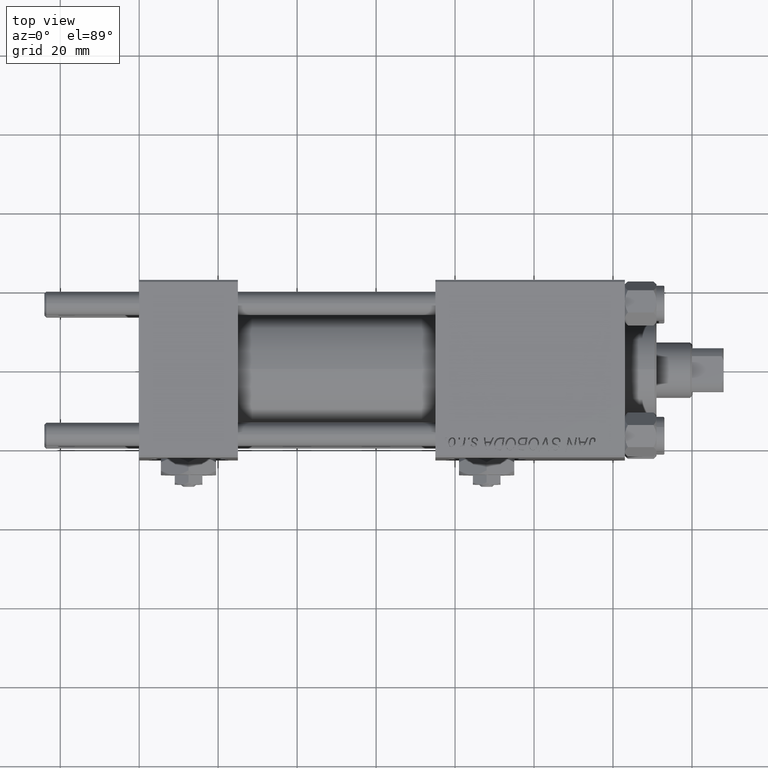
[diagram: clean part render]
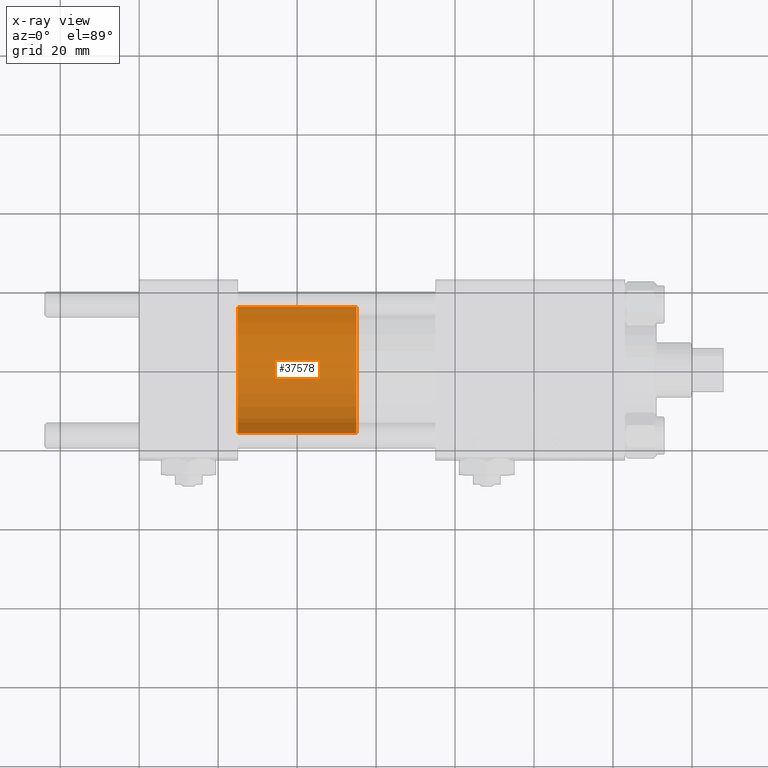
[diagram: x-ray — body ghosted, one internal face saturated and labeled with its STEP entity id]
A machine part, top view, then the same camera in x-ray: the body is ghosted and one INTERNAL B-rep face — a face not visible from any outside direction — is saturated and labeled: STEP entity #37578.
In plain terms, the highlighted cylindrical surface (partial cylindrical patch) has radius 16 mm, axis along (-1, 0, 0).
Its self-contained STEP definition (entity closure, byte-faithful):
#3002 = CARTESIAN_POINT ( 'NONE',  ( 16.00000000000000000, 1.959434878635765131E-15, 30.00000000000000000 ) ) ;
#3242 = DIRECTION ( 'NONE',  ( -0.000000000000000000, -0.000000000000000000, -1.000000000000000000 ) ) ;
#5904 = VECTOR ( 'NONE', #30885, 1000.000000000000000 ) ;
#7209 = CYLINDRICAL_SURFACE ( 'NONE', #39161, 16.00000000000000000 ) ;
#8170 = CARTESIAN_POINT ( 'NONE',  ( 16.00000000000000000, 1.959434878635765131E-15, 0.000000000000000000 ) ) ;
#11947 = CARTESIAN_POINT ( 'NONE',  ( 0.000000000000000000, 0.000000000000000000, 30.00000000000000000 ) ) ;
#13868 = EDGE_CURVE ( 'NONE', #31580, #51499, #36356, .T. ) ;
#14795 = CIRCLE ( 'NONE', #29887, 16.00000000000000000 ) ;
#16001 = DIRECTION ( 'NONE',  ( 1.000000000000000000, 0.000000000000000000, 0.000000000000000000 ) ) ;
#20129 = VECTOR ( 'NONE', #3242, 1000.000000000000000 ) ;
#20259 = ORIENTED_EDGE ( 'NONE', *, *, #31993, .T. ) ;
#20289 = ORIENTED_EDGE ( 'NONE', *, *, #13868, .F. ) ;
#28471 = CARTESIAN_POINT ( 'NONE',  ( -16.00000000000000000, 0.000000000000000000, 30.00000000000000000 ) ) ;
#29843 = CARTESIAN_POINT ( 'NONE',  ( 0.000000000000000000, 0.000000000000000000, 0.000000000000000000 ) ) ;
#29887 = AXIS2_PLACEMENT_3D ( 'NONE', #29843, #34046, #42692 ) ;
#30885 = DIRECTION ( 'NONE',  ( -0.000000000000000000, -0.000000000000000000, -1.000000000000000000 ) ) ;
#31580 = VERTEX_POINT ( 'NONE', #48648 ) ;
#31686 = AXIS2_PLACEMENT_3D ( 'NONE', #43591, #44093, #16001 ) ;
#31933 = FACE_OUTER_BOUND ( 'NONE', #39565, .T. ) ;
#31993 = EDGE_CURVE ( 'NONE', #43355, #51499, #14795, .T. ) ;
#33349 = CARTESIAN_POINT ( 'NONE',  ( 16.00000000000000000, 1.959434878635765131E-15, 30.00000000000000000 ) ) ;
#33736 = ORIENTED_EDGE ( 'NONE', *, *, #36027, .F. ) ;
#34046 = DIRECTION ( 'NONE',  ( 0.000000000000000000, 0.000000000000000000, 1.000000000000000000 ) ) ;
#35370 = DIRECTION ( 'NONE',  ( -0.000000000000000000, -0.000000000000000000, -1.000000000000000000 ) ) ;
#36027 = EDGE_CURVE ( 'NONE', #44016, #31580, #44264, .T. ) ;
#36281 = CARTESIAN_POINT ( 'NONE',  ( -16.00000000000000000, 0.000000000000000000, 0.000000000000000000 ) ) ;
#36356 = LINE ( 'NONE', #28471, #20129 ) ;
#37578 = ADVANCED_FACE ( 'NONE', ( #31933 ), #7209, .T. ) ;
#39003 = LINE ( 'NONE', #3002, #5904 ) ;
#39161 = AXIS2_PLACEMENT_3D ( 'NONE', #11947, #35370, #44249 ) ;
#39565 = EDGE_LOOP ( 'NONE', ( #33736, #43550, #20259, #20289 ) ) ;
#42692 = DIRECTION ( 'NONE',  ( 1.000000000000000000, 0.000000000000000000, 0.000000000000000000 ) ) ;
#43355 = VERTEX_POINT ( 'NONE', #8170 ) ;
#43550 = ORIENTED_EDGE ( 'NONE', *, *, #46483, .T. ) ;
#43591 = CARTESIAN_POINT ( 'NONE',  ( 0.000000000000000000, 0.000000000000000000, 30.00000000000000000 ) ) ;
#44016 = VERTEX_POINT ( 'NONE', #33349 ) ;
#44093 = DIRECTION ( 'NONE',  ( 0.000000000000000000, 0.000000000000000000, 1.000000000000000000 ) ) ;
#44249 = DIRECTION ( 'NONE',  ( -1.000000000000000000, 0.000000000000000000, 0.000000000000000000 ) ) ;
#44264 = CIRCLE ( 'NONE', #31686, 16.00000000000000000 ) ;
#46483 = EDGE_CURVE ( 'NONE', #44016, #43355, #39003, .T. ) ;
#48648 = CARTESIAN_POINT ( 'NONE',  ( -16.00000000000000000, 0.000000000000000000, 30.00000000000000000 ) ) ;
#51499 = VERTEX_POINT ( 'NONE', #36281 ) ;